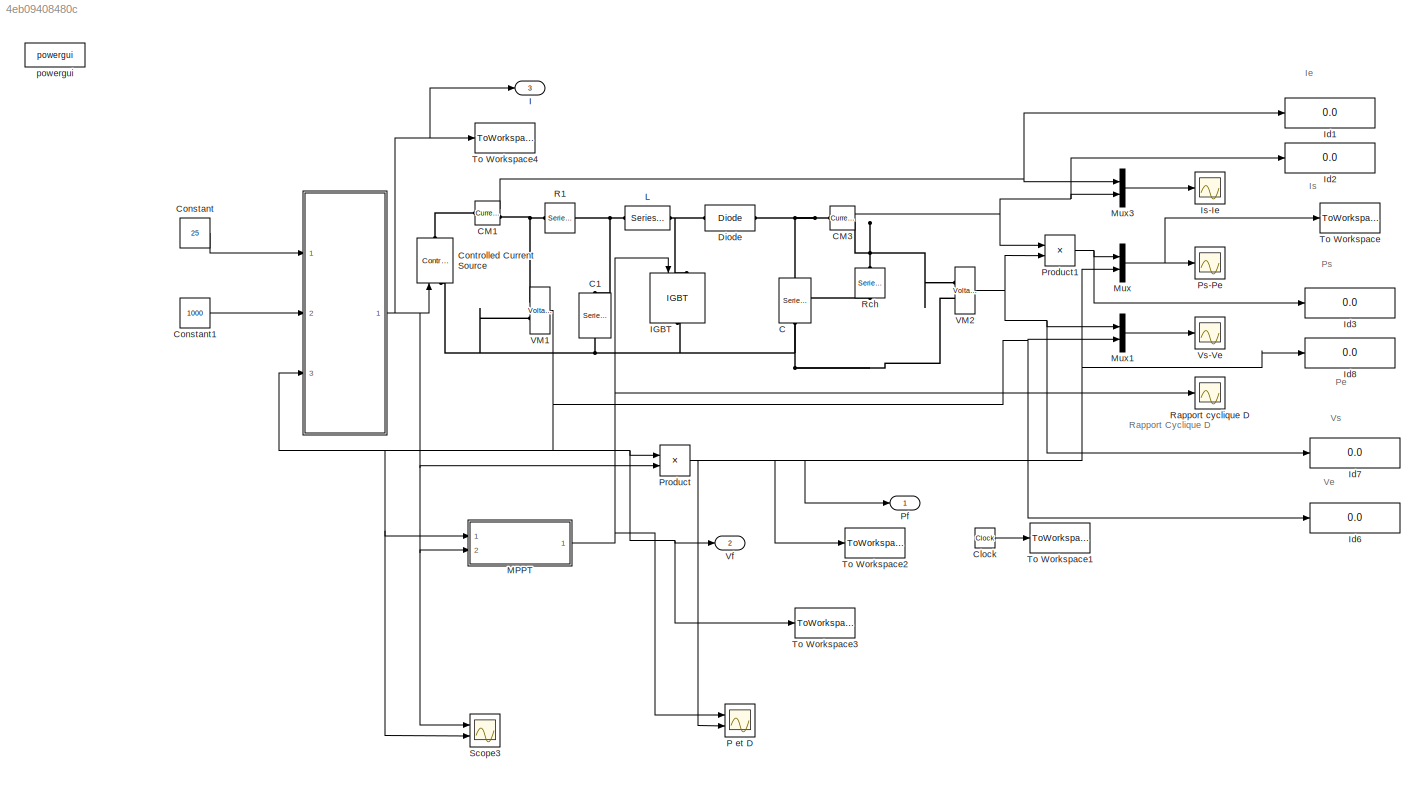
MODEL slx_4eb09408480c
KIND model
CONFIG AbsTol = auto
CONFIG FixedStep = auto
CONFIG MaxStep = auto
CONFIG MinStep = auto
CONFIG RelTol = 1e-3
CONFIG SampleTimeConstraint = Unconstrained
CONFIG Solver = VariableStepAuto
CONFIG SolverMode = Auto
CONFIG SolverName = VariableStepAuto
CONFIG StartTime = 0.0
CONFIG StopTime = 10.0
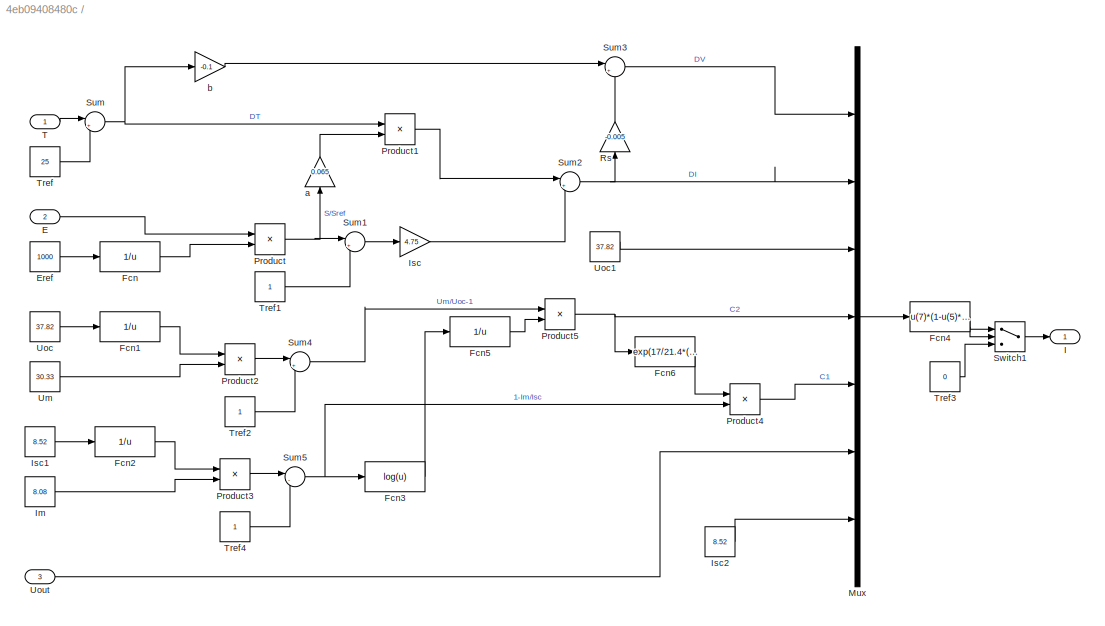
BLOCK [SubSystem]  
  Ports = [3, 1]
  RequestExecContextInheritance = off
  Variant = off
BLOCK [Inport]  /E
  IconDisplay = Port number
  Port = 2
BLOCK [Constant]  /Eref
  Value = 1000
BLOCK [Fcn]  /Fcn
  Expr = 1/u
BLOCK [Fcn]  /Fcn1
  Expr = 1/u
BLOCK [Fcn]  /Fcn2
  Expr = 1/u
BLOCK [Fcn]  /Fcn3
  Expr = log(u)
BLOCK [Fcn]  /Fcn4
  Expr = u(7)*(1-u(5)*(exp((u(6)-u(1))/(u(4)*u(3)))-1))+u(2)
BLOCK [Fcn]  /Fcn5
  Expr = 1/u
BLOCK [Fcn]  /Fcn6
  Expr = exp(17/21.4*(-1)/u)
BLOCK [Outport]  /I
  IconDisplay = Port number
BLOCK [Constant]  /Im
  Value = 8.08
BLOCK [Gain]  /Isc
  Gain = 4.75
  OutDataTypeStr = Inherit: Inherit via internal rule
  ParamDataTypeStr = Inherit: Inherit via internal rule
  SaturateOnIntegerOverflow = off
BLOCK [Constant]  /Isc1
  Value = 8.52
BLOCK [Constant]  /Isc2
  Value = 8.52
BLOCK [Mux]  /Mux
  DisplayOption = bar
  Inputs = 7
  Ports = [7, 1]
BLOCK [Product]  /Product
  InputSameDT = off
  OutDataTypeStr = Inherit: Inherit via internal rule
  Ports = [2, 1]
  SaturateOnIntegerOverflow = off
BLOCK [Product]  /Product1
  InputSameDT = off
  OutDataTypeStr = Inherit: Inherit via internal rule
  Ports = [2, 1]
  SaturateOnIntegerOverflow = off
BLOCK [Product]  /Product2
  InputSameDT = off
  OutDataTypeStr = Inherit: Inherit via internal rule
  Ports = [2, 1]
  SaturateOnIntegerOverflow = off
BLOCK [Product]  /Product3
  InputSameDT = off
  OutDataTypeStr = Inherit: Inherit via internal rule
  Ports = [2, 1]
  SaturateOnIntegerOverflow = off
BLOCK [Product]  /Product4
  InputSameDT = off
  OutDataTypeStr = Inherit: Inherit via internal rule
  Ports = [2, 1]
  SaturateOnIntegerOverflow = off
BLOCK [Product]  /Product5
  InputSameDT = off
  OutDataTypeStr = Inherit: Inherit via internal rule
  Ports = [2, 1]
  SaturateOnIntegerOverflow = off
BLOCK [Gain]  /Rs
  Gain = -0.005
  OutDataTypeStr = Inherit: Inherit via internal rule
  ParamDataTypeStr = Inherit: Inherit via internal rule
  SaturateOnIntegerOverflow = off
BLOCK [Sum]  /Sum
  IconShape = round
  InputSameDT = off
  Inputs = |+-
  OutDataTypeStr = Inherit: Inherit via internal rule
  Ports = [2, 1]
  SaturateOnIntegerOverflow = off
BLOCK [Sum]  /Sum1
  IconShape = round
  InputSameDT = off
  Inputs = |+-
  OutDataTypeStr = Inherit: Inherit via internal rule
  Ports = [2, 1]
  SaturateOnIntegerOverflow = off
BLOCK [Sum]  /Sum2
  IconShape = round
  InputSameDT = off
  Inputs = |++
  OutDataTypeStr = Inherit: Inherit via internal rule
  Ports = [2, 1]
  SaturateOnIntegerOverflow = off
BLOCK [Sum]  /Sum3
  IconShape = round
  InputSameDT = off
  Inputs = |++
  OutDataTypeStr = Inherit: Inherit via internal rule
  Ports = [2, 1]
  SaturateOnIntegerOverflow = off
BLOCK [Sum]  /Sum4
  IconShape = round
  InputSameDT = off
  Inputs = |+-
  OutDataTypeStr = Inherit: Inherit via internal rule
  Ports = [2, 1]
  SaturateOnIntegerOverflow = off
BLOCK [Sum]  /Sum5
  IconShape = round
  InputSameDT = off
  Inputs = |-+
  OutDataTypeStr = Inherit: Inherit via internal rule
  Ports = [2, 1]
  SaturateOnIntegerOverflow = off
BLOCK [Switch]  /Switch1
  InputSameDT = off
  SaturateOnIntegerOverflow = off
BLOCK [Inport]  /T
  IconDisplay = Port number
BLOCK [Constant]  /Tref
  Value = 25
BLOCK [Constant]  /Tref1
BLOCK [Constant]  /Tref2
BLOCK [Constant]  /Tref3
  Value = 0
BLOCK [Constant]  /Tref4
BLOCK [Constant]  /Um
  Value = 30.33
BLOCK [Constant]  /Uoc
  Value = 37.82
BLOCK [Constant]  /Uoc1
  Value = 37.82
BLOCK [Inport]  /Uout
  IconDisplay = Port number
  Port = 3
BLOCK [Gain]  /a
  Gain = 0.065
  OutDataTypeStr = Inherit: Inherit via internal rule
  ParamDataTypeStr = Inherit: Inherit via internal rule
  SaturateOnIntegerOverflow = off
BLOCK [Gain]  /b
  Gain = -0.1
  OutDataTypeStr = Inherit: Inherit via internal rule
  ParamDataTypeStr = Inherit: Inherit via internal rule
  SaturateOnIntegerOverflow = off
BLOCK [Reference] C  REF=powerlib/Elements/Series RLC Branch
  Ports = [0, 0, 0, 0, 0, 1, 1]
  SourceBlock = powerlib/Elements/Series RLC Branch
  SourceType = Series RLC Branch
BLOCK [Reference] C1  REF=powerlib/Elements/Series RLC Branch
  Ports = [0, 0, 0, 0, 0, 1, 1]
  SourceBlock = powerlib/Elements/Series RLC Branch
  SourceType = Series RLC Branch
BLOCK [Reference] CM1  REF=powerlib/Measurements/Current Measurement
  AttributesFormatString = \n
  Ports = [0, 1, 0, 0, 0, 1, 1]
  SourceBlock = powerlib/Measurements/Current Measurement
  SourceType = Current Measurement
  Tag = PoWeRsYsTeMmEaSuReMeNt
BLOCK [Reference] CM3  REF=powerlib/Measurements/Current Measurement
  AttributesFormatString = \n
  Ports = [0, 1, 0, 0, 0, 1, 1]
  SourceBlock = powerlib/Measurements/Current Measurement
  SourceType = Current Measurement
  Tag = PoWeRsYsTeMmEaSuReMeNt
BLOCK [Clock] Clock
BLOCK [Constant] Constant
  Value = 25
BLOCK [Constant] Constant1
  Value = 1000
BLOCK [Reference] Controlled Current Source  REF=powerlib/Electrical
Sources/Controlled Current Source
  Ports = [1, 0, 0, 0, 0, 1, 1]
  SourceBlock = powerlib/Electrical\nSources/Controlled Current Source
  SourceType = Controlled Current Source
BLOCK [Reference] Diode  REF=powerlib/Power
Electronics/Diode
  AttributesFormatString = \n
  Ports = [0, 0, 0, 0, 0, 1, 1]
  SourceBlock = powerlib/Power\nElectronics/Diode
  SourceType = Diode
BLOCK [Outport] I  
  IconDisplay = Port number
  Port = 3
BLOCK [Reference] IGBT  REF=powerlib/Power
Electronics/IGBT
  Ports = [1, 0, 0, 0, 0, 1, 1]
  SourceBlock = powerlib/Power\nElectronics/IGBT
  SourceType = IGBT
BLOCK [Display] Id1
  Decimation = 1
  Ports = [1]
BLOCK [Display] Id2
  Decimation = 1
  Ports = [1]
BLOCK [Display] Id3
  Decimation = 1
  Ports = [1]
BLOCK [Display] Id6
  Decimation = 1
  Ports = [1]
BLOCK [Display] Id7
  Decimation = 1
  Ports = [1]
BLOCK [Display] Id8
  Decimation = 1
  Ports = [1]
BLOCK [Scope] Is-Ie
  Ports = [1]
  ScopeSpecificationString = Simulink.scopes.TimeScopeBlockCfg('CurrentConfiguration', extmgr.ConfigurationSet(extmgr.Configuration('Core','General UI',true,'FigureColor',[0 0 0]),extmgr.Configuration('Core','Source UI',true),extmgr.Configuration('Sources','WiredSimulink',true,'DataLoggingVariableName','ScopeData2'),extmgr.Configuration('Visuals','Time Domain',true,'SerializedDisplays',{struct('MinYLimReal','-1.065','MaxYLimR...<+1528ch>
BLOCK [Reference] L  REF=powerlib/Elements/Series RLC Branch
  Ports = [0, 0, 0, 0, 0, 1, 1]
  SourceBlock = powerlib/Elements/Series RLC Branch
  SourceType = Series RLC Branch
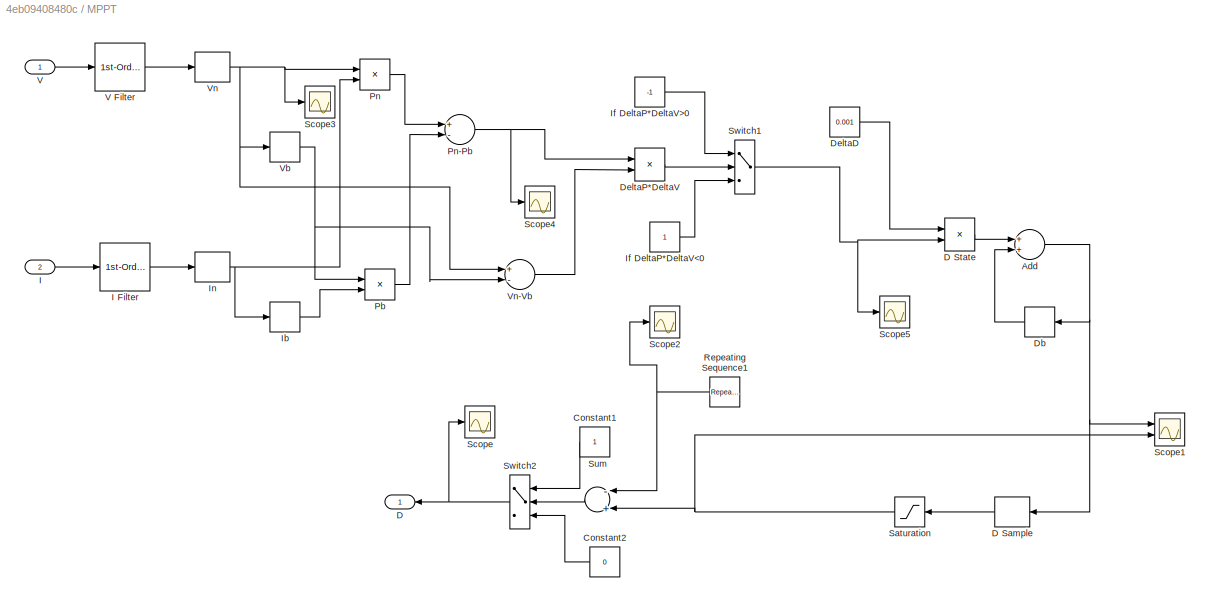
BLOCK [SubSystem] MPPT
  Ports = [2, 1]
  RequestExecContextInheritance = off
  Variant = off
BLOCK [Sum] MPPT/Add
  InputSameDT = off
  OutDataTypeStr = Inherit: Inherit via internal rule
  Ports = [2, 1]
  SaturateOnIntegerOverflow = off
BLOCK [Constant] MPPT/Constant1
  SampleTime = -1
BLOCK [Constant] MPPT/Constant2
  SampleTime = -1
  Value = 0
BLOCK [Outport] MPPT/D
  IconDisplay = Port number
BLOCK [ZeroOrderHold] MPPT/D Sample
  SampleTime = 1e-4
BLOCK [Product] MPPT/D State
  InputSameDT = off
  OutDataTypeStr = Inherit: Inherit via internal rule
  Ports = [2, 1]
  SaturateOnIntegerOverflow = off
BLOCK [Memory] MPPT/Db
  InheritSampleTime = on
  LinearizeAsDelay = on
BLOCK [Constant] MPPT/DeltaD
  Value = 0.001
BLOCK [Product] MPPT/DeltaP*DeltaV
  InputSameDT = off
  OutDataTypeStr = Inherit: Inherit via internal rule
  Ports = [2, 1]
  SaturateOnIntegerOverflow = off
BLOCK [Inport] MPPT/I
  IconDisplay = Port number
  Port = 2
BLOCK [Reference] MPPT/I Filter  REF=powerlib_extras/Control 
Blocks/1st-Order 
Filter
  Ports = [1, 1]
  SourceBlock = powerlib_extras/Control \nBlocks/1st-Order \nFilter
  SourceType = First-Order Filter
BLOCK [Memory] MPPT/Ib
  InheritSampleTime = on
  LinearizeAsDelay = on
BLOCK [Constant] MPPT/If DeltaP*DeltaV<0
BLOCK [Constant] MPPT/If DeltaP*DeltaV>0
  Value = -1
BLOCK [ZeroOrderHold] MPPT/In
  SampleTime = 1e-4
BLOCK [Product] MPPT/Pb
  InputSameDT = off
  OutDataTypeStr = Inherit: Inherit via internal rule
  Ports = [2, 1]
  SaturateOnIntegerOverflow = off
BLOCK [Product] MPPT/Pn
  InputSameDT = off
  OutDataTypeStr = Inherit: Inherit via internal rule
  Ports = [2, 1]
  SaturateOnIntegerOverflow = off
BLOCK [Sum] MPPT/Pn-Pb
  InputSameDT = off
  Inputs = +-
  OutDataTypeStr = Inherit: Inherit via internal rule
  Ports = [2, 1]
  SaturateOnIntegerOverflow = off
BLOCK [Reference] MPPT/Repeating Sequence1  REF=simulink/Sources/Repeating
Sequence
  Ports = [0, 1]
  SourceBlock = simulink/Sources/Repeating\nSequence
  SourceType = Repeating table
BLOCK [Saturate] MPPT/Saturation
  InputPortMap = u0
  LowerLimit = 0
  Ports = [1, 1]
  UpperLimit = 0.8
BLOCK [Scope] MPPT/Scope
  Ports = [1]
  ScopeSpecificationString = Simulink.scopes.TimeScopeBlockCfg('CurrentConfiguration', extmgr.ConfigurationSet(extmgr.Configuration('Core','General UI',true),extmgr.Configuration('Core','Source UI',true),extmgr.Configuration('Sources','WiredSimulink',true,'DataLoggingVariableName','ScopeData1'),extmgr.Configuration('Visuals','Time Domain',true,'SerializedDisplays',{struct('MinYLimReal','-0.125','MaxYLimReal','1.125','YLabelRe...<+1454ch>
BLOCK [Scope] MPPT/Scope1
  NumInputPorts = 2
  Ports = [2]
  ScopeSpecificationString = Simulink.scopes.TimeScopeBlockCfg('CurrentConfiguration', extmgr.ConfigurationSet(extmgr.Configuration('Core','General UI',true),extmgr.Configuration('Core','Source UI',true),extmgr.Configuration('Sources','WiredSimulink',true,'DataLoggingVariableName','ScopeData3','DataLoggingSaveFormat','StructureWithTime','DataLoggingDecimation','1','DataLoggingDecimateData',true),extmgr.Configuration('Visuals'...<+2365ch>
BLOCK [Scope] MPPT/Scope2
  Ports = [1]
  ScopeSpecificationString = Simulink.scopes.TimeScopeBlockCfg('CurrentConfiguration', extmgr.ConfigurationSet(extmgr.Configuration('Core','General UI',true),extmgr.Configuration('Core','Source UI',true),extmgr.Configuration('Sources','WiredSimulink',true,'DataLoggingVariableName','ScopeData1'),extmgr.Configuration('Visuals','Time Domain',true,'SerializedDisplays',{struct('MinYLimReal','-0.125','MaxYLimReal','1.125','YLabelRe...<+1420ch>
BLOCK [Scope] MPPT/Scope3
  Ports = [1]
  ScopeSpecificationString = Simulink.scopes.TimeScopeBlockCfg('CurrentConfiguration', extmgr.ConfigurationSet(extmgr.Configuration('Core','General UI',true),extmgr.Configuration('Core','Source UI',true),extmgr.Configuration('Sources','WiredSimulink',true,'DataLoggingVariableName','ScopeData2'),extmgr.Configuration('Visuals','Time Domain',true,'SerializedDisplays',{struct('MinYLimReal','-84.75913','MaxYLimReal','109.01231','Y...<+1396ch>
BLOCK [Scope] MPPT/Scope4
  Ports = [1]
  ScopeSpecificationString = Simulink.scopes.TimeScopeBlockCfg('CurrentConfiguration', extmgr.ConfigurationSet(extmgr.Configuration('Core','General UI',true),extmgr.Configuration('Core','Source UI',true),extmgr.Configuration('Sources','WiredSimulink',true,'DataLoggingVariableName','ScopeData3'),extmgr.Configuration('Visuals','Time Domain',true,'SerializedDisplays',{struct('MinYLimReal','-6.68073','MaxYLimReal','7.59499','YLab...<+1418ch>
BLOCK [Scope] MPPT/Scope5
  Ports = [1]
  ScopeSpecificationString = Simulink.scopes.TimeScopeBlockCfg('CurrentConfiguration', extmgr.ConfigurationSet(extmgr.Configuration('Core','General UI',true),extmgr.Configuration('Core','Source UI',true),extmgr.Configuration('Sources','WiredSimulink',true,'DataLoggingVariableName','ScopeData4'),extmgr.Configuration('Visuals','Time Domain',true,'SerializedDisplays',{struct('MinYLimReal','-1.25','MaxYLimReal','1.25','YLabelReal...<+1402ch>
BLOCK [Sum] MPPT/Sum
  InputSameDT = off
  Inputs = -+
  OutDataTypeStr = Inherit: Inherit via internal rule
  Ports = [2, 1]
BLOCK [Switch] MPPT/Switch1
  InputSameDT = off
  SaturateOnIntegerOverflow = off
BLOCK [Switch] MPPT/Switch2
  InputSameDT = off
  SaturateOnIntegerOverflow = off
BLOCK [Inport] MPPT/V
  IconDisplay = Port number
BLOCK [Reference] MPPT/V Filter  REF=powerlib_extras/Control 
Blocks/1st-Order 
Filter
  Ports = [1, 1]
  SourceBlock = powerlib_extras/Control \nBlocks/1st-Order \nFilter
  SourceType = First-Order Filter
BLOCK [Memory] MPPT/Vb
  InheritSampleTime = on
  LinearizeAsDelay = on
BLOCK [ZeroOrderHold] MPPT/Vn
  SampleTime = 1e-4
BLOCK [Sum] MPPT/Vn-Vb
  InputSameDT = off
  Inputs = +-
  OutDataTypeStr = Inherit: Inherit via internal rule
  Ports = [2, 1]
  SaturateOnIntegerOverflow = off
BLOCK [Mux] Mux
  DisplayOption = bar
  Inputs = 2
  Ports = [2, 1]
BLOCK [Mux] Mux1
  DisplayOption = bar
  Inputs = 2
  Ports = [2, 1]
BLOCK [Mux] Mux3
  DisplayOption = bar
  Inputs = 2
  Ports = [2, 1]
BLOCK [Scope] P et D 
  NumInputPorts = 2
  Ports = [2]
  ScopeSpecificationString = Simulink.scopes.TimeScopeBlockCfg('CurrentConfiguration', extmgr.ConfigurationSet(extmgr.Configuration('Core','General UI',true),extmgr.Configuration('Core','Source UI',true),extmgr.Configuration('Sources','WiredSimulink',true,'DataLoggingVariableName','ScopeData2'),extmgr.Configuration('Visuals','Time Domain',true,'SerializedDisplays',{struct('MinYLimReal','-30.52248','MaxYLimReal','274.70233','Y...<+1636ch>
BLOCK [Outport] Pf
  IconDisplay = Port number
BLOCK [Product] Product
  InputSameDT = off
  OutDataTypeStr = Inherit: Inherit via internal rule
  Ports = [2, 1]
  SaturateOnIntegerOverflow = off
BLOCK [Product] Product1
  InputSameDT = off
  OutDataTypeStr = Inherit: Inherit via internal rule
  Ports = [2, 1]
  SaturateOnIntegerOverflow = off
BLOCK [Scope] Ps-Pe
  Ports = [1]
  ScopeSpecificationString = Simulink.scopes.TimeScopeBlockCfg('CurrentConfiguration', extmgr.ConfigurationSet(extmgr.Configuration('Core','General UI',true,'FigureColor',[0 0 0]),extmgr.Configuration('Core','Source UI',true),extmgr.Configuration('Sources','WiredSimulink',true,'DataLoggingVariableName','ScopeData1'),extmgr.Configuration('Visuals','Time Domain',true,'SerializedDisplays',{struct('MinYLimReal','-224.22601','MaxY...<+1563ch>
BLOCK [Reference] R1  REF=powerlib/Elements/Series RLC Branch
  Ports = [0, 0, 0, 0, 0, 1, 1]
  SourceBlock = powerlib/Elements/Series RLC Branch
  SourceType = Series RLC Branch
BLOCK [Scope] Rapport cyclique D
  Ports = [1]
  ScopeSpecificationString = Simulink.scopes.TimeScopeBlockCfg('CurrentConfiguration', extmgr.ConfigurationSet(extmgr.Configuration('Core','General UI',true),extmgr.Configuration('Core','Source UI',true),extmgr.Configuration('Sources','WiredSimulink',true,'DataLoggingVariableName','ScopeData4','DataLoggingSaveFormat','StructureWithTime','DataLoggingDecimation','1','DataLoggingDecimateData',true),extmgr.Configuration('Visuals'...<+1765ch>
BLOCK [Reference] Rch  REF=powerlib/Elements/Series RLC Branch
  Ports = [0, 0, 0, 0, 0, 1, 1]
  SourceBlock = powerlib/Elements/Series RLC Branch
  SourceType = Series RLC Branch
BLOCK [Scope] Scope3
  NumInputPorts = 2
  Ports = [2]
  ScopeSpecificationString = Simulink.scopes.TimeScopeBlockCfg('CurrentConfiguration', extmgr.ConfigurationSet(extmgr.Configuration('Core','General UI',true),extmgr.Configuration('Core','Source UI',true),extmgr.Configuration('Sources','WiredSimulink',true,'DataLoggingVariableName','ScopeData5'),extmgr.Configuration('Visuals','Time Domain',true,'SerializedDisplays',{struct('MinYLimReal','-29.15807','MaxYLimReal','43.22011','YL...<+1824ch>
BLOCK [ToWorkspace] To Workspace
  MaxDataPoints = inf
  Ports = [1]
  SampleTime = -1
  VariableName = P
BLOCK [ToWorkspace] To Workspace1
  MaxDataPoints = inf
  Ports = [1]
  SampleTime = -1
  VariableName = t
BLOCK [ToWorkspace] To Workspace2
  MaxDataPoints = inf
  Ports = [1]
  SampleTime = -1
  VariableName = Pf
BLOCK [ToWorkspace] To Workspace3
  MaxDataPoints = inf
  Ports = [1]
  SampleTime = -1
  VariableName = Vf
BLOCK [ToWorkspace] To Workspace4
  MaxDataPoints = inf
  Ports = [1]
  SampleTime = -1
  VariableName = If
BLOCK [Reference] VM1  REF=powerlib/Measurements/Voltage Measurement
  AttributesFormatString = \n
  Ports = [0, 1, 0, 0, 0, 2]
  SourceBlock = powerlib/Measurements/Voltage Measurement
  SourceType = Voltage Measurement
  Tag = PoWeRsYsTeMmEaSuReMeNt
BLOCK [Reference] VM2  REF=powerlib/Measurements/Voltage Measurement
  AttributesFormatString = \n
  Ports = [0, 1, 0, 0, 0, 2]
  SourceBlock = powerlib/Measurements/Voltage Measurement
  SourceType = Voltage Measurement
  Tag = PoWeRsYsTeMmEaSuReMeNt
BLOCK [Outport] Vf
  IconDisplay = Port number
  Port = 2
BLOCK [Scope] Vs-Ve
  Ports = [1]
  ScopeSpecificationString = Simulink.scopes.TimeScopeBlockCfg('CurrentConfiguration', extmgr.ConfigurationSet(extmgr.Configuration('Core','General UI',true,'FigureColor',[0 0 0]),extmgr.Configuration('Core','Source UI',true),extmgr.Configuration('Sources','WiredSimulink',true,'DataLoggingVariableName','ScopeData3'),extmgr.Configuration('Visuals','Time Domain',true,'SerializedDisplays',{struct('MinYLimReal','-28.11594','MaxYL...<+1546ch>
BLOCK [Reference] powergui  REF=powerlib/powergui
  Ports = []
  SourceBlock = powerlib/powergui
  SourceType = PSB option menu block
  UserDataPersistent = on
ANNOTATION (root): Ie
ANNOTATION (root): Is
ANNOTATION (root): Pe
ANNOTATION (root): Ps
ANNOTATION (root): Rapport Cyclique D
ANNOTATION (root): Ve
ANNOTATION (root): Vs
LINE  /E:1 ->  /Product:1
LINE  /Eref:1 ->  /Fcn:1
LINE  /Fcn1:1 ->  /Product2:1
LINE  /Fcn2:1 ->  /Product3:1
LINE  /Fcn3:1 ->  /Fcn5:1
NET  /Fcn4:1 ->  /Switch1:1,  /Switch1:2
LINE  /Fcn5:1 ->  /Product5:2
LINE  /Fcn6:1 ->  /Product4:1
LINE  /Fcn:1 ->  /Product:2
LINE  /Im:1 ->  /Product3:2
LINE  /Isc1:1 ->  /Fcn2:1
LINE  /Isc2:1 ->  /Mux:7
LINE  /Isc:1 ->  /Sum2:2
LINE  /Mux:1 ->  /Fcn4:1
LINE  /Product1:1 ->  /Sum2:1
LINE  /Product2:1 ->  /Sum4:1
LINE  /Product3:1 ->  /Sum5:1
LINE  /Product4:1 ->  /Mux:5
NET  /Product5:1 ->  /Fcn6:1,  /Mux:4
NET  /Product:1 ->  /Sum1:1,  /a:1
LINE  /Rs:1 ->  /Sum3:2
LINE  /Sum1:1 ->  /Isc:1
NET  /Sum2:1 ->  /Mux:2,  /Rs:1
LINE  /Sum3:1 ->  /Mux:1
LINE  /Sum4:1 ->  /Product5:1
NET  /Sum5:1 ->  /Fcn3:1,  /Product4:2
NET  /Sum:1 ->  /Product1:1,  /b:1
LINE  /Switch1:1 ->  /I:1
LINE  /T:1 ->  /Sum:1
LINE  /Tref1:1 ->  /Sum1:2
LINE  /Tref2:1 ->  /Sum4:2
LINE  /Tref3:1 ->  /Switch1:3
LINE  /Tref4:1 ->  /Sum5:2
LINE  /Tref:1 ->  /Sum:2
LINE  /Um:1 ->  /Product2:2
LINE  /Uoc1:1 ->  /Mux:3
LINE  /Uoc:1 ->  /Fcn1:1
LINE  /Uout:1 ->  /Mux:6
LINE  /a:1 ->  /Product1:2
LINE  /b:1 ->  /Sum3:1
NET  :1 -> Controlled Current Source:1, I  :1, MPPT:2, Product:2, Scope3:1, To Workspace4:1
NET CM1:1 -> Id1:1, Mux3:1
NET CM3:1 -> Id2:1, Mux3:2, Product1:1
LINE Clock:1 -> To Workspace1:1
LINE Constant1:1 ->  :2
LINE Constant:1 ->  :1
NET MPPT/Add:1 -> MPPT/D Sample:1, MPPT/Db:1, MPPT/Scope1:1
LINE MPPT/Constant1:1 -> MPPT/Switch2:1
LINE MPPT/Constant2:1 -> MPPT/Switch2:3
LINE MPPT/D Sample:1 -> MPPT/Saturation:1
LINE MPPT/D State:1 -> MPPT/Add:1
LINE MPPT/Db:1 -> MPPT/Add:2
LINE MPPT/DeltaD:1 -> MPPT/D State:1
LINE MPPT/DeltaP*DeltaV:1 -> MPPT/Switch1:2
LINE MPPT/I Filter:1 -> MPPT/In:1
LINE MPPT/I:1 -> MPPT/I Filter:1
LINE MPPT/Ib:1 -> MPPT/Pb:2
LINE MPPT/If DeltaP*DeltaV<0:1 -> MPPT/Switch1:3
LINE MPPT/If DeltaP*DeltaV>0:1 -> MPPT/Switch1:1
NET MPPT/In:1 -> MPPT/Ib:1, MPPT/Pn:2
LINE MPPT/Pb:1 -> MPPT/Pn-Pb:2
NET MPPT/Pn-Pb:1 -> MPPT/DeltaP*DeltaV:1, MPPT/Scope4:1
LINE MPPT/Pn:1 -> MPPT/Pn-Pb:1
NET MPPT/Repeating Sequence1:1 -> MPPT/Scope2:1, MPPT/Sum:1
NET MPPT/Saturation:1 -> MPPT/Scope1:2, MPPT/Sum:2
LINE MPPT/Sum:1 -> MPPT/Switch2:2
NET MPPT/Switch1:1 -> MPPT/D State:2, MPPT/Scope5:1
NET MPPT/Switch2:1 -> MPPT/D:1, MPPT/Scope:1
LINE MPPT/V Filter:1 -> MPPT/Vn:1
LINE MPPT/V:1 -> MPPT/V Filter:1
NET MPPT/Vb:1 -> MPPT/Pb:1, MPPT/Vn-Vb:2
LINE MPPT/Vn-Vb:1 -> MPPT/DeltaP*DeltaV:2
NET MPPT/Vn:1 -> MPPT/Pn:1, MPPT/Scope3:1, MPPT/Vb:1, MPPT/Vn-Vb:1
NET MPPT:1 -> IGBT:1, P et D :1, Rapport cyclique D:1
LINE Mux1:1 -> Vs-Ve:1
LINE Mux3:1 -> Is-Ie:1
NET Mux:1 -> Ps-Pe:1, To Workspace:1
NET Product1:1 -> Id3:1, Mux:1
NET Product:1 -> Id8:1, Mux:2, P et D :2, Pf:1, To Workspace2:1
NET VM1:1 ->  :3, Id6:1, MPPT:1, Mux1:2, Product:1, Scope3:2, To Workspace3:1, Vf:1
NET VM2:1 -> Id7:1, Mux1:1, Product1:2
PNET net1: C1:LConn1 -- L:LConn1 -- R1:LConn1
PNET net2: C1:RConn1 -- C:RConn1 -- Controlled Current Source:LConn1 -- IGBT:RConn1 -- Rch:RConn1 -- VM1:LConn2 -- VM2:LConn2
PNET net3: C:LConn1 -- CM3:LConn1 -- Diode:RConn1
PLINE CM1:LConn1 -- Controlled Current Source:RConn1
PNET net4: CM1:RConn1 -- R1:RConn1 -- VM1:LConn1
PNET net5: CM3:RConn1 -- Rch:LConn1 -- VM2:LConn1
PNET net6: Diode:LConn1 -- IGBT:LConn1 -- L:RConn1
note: NET lines group one-source signal fan-out (src -> all destinations, sorted); 1:1 wires keep LINE; PNET lines group multi-terminal physical nets as a canonical sorted terminal list (undirected conserving connections); 2-terminal nets keep the pairwise PLINE form
